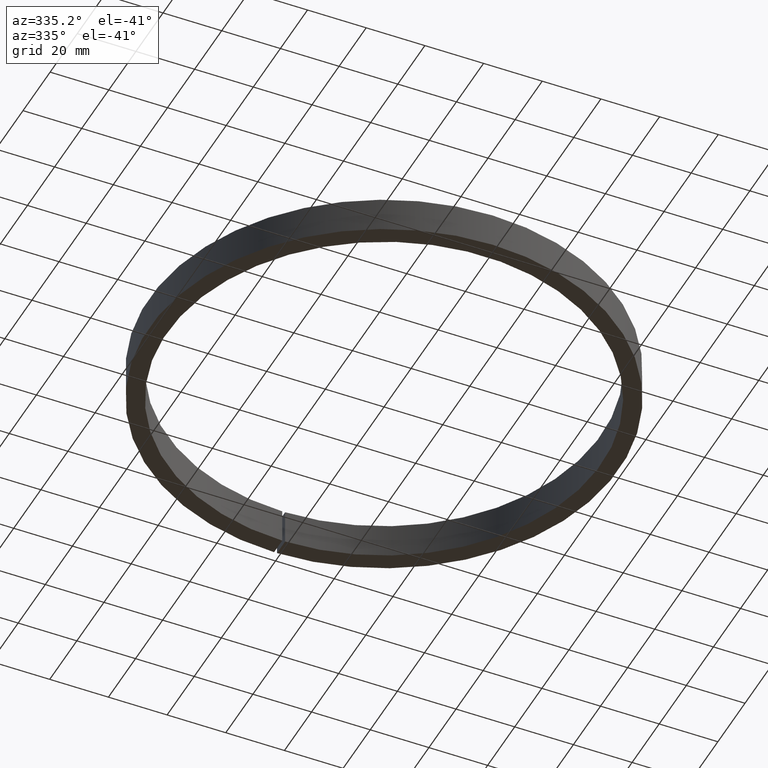
[diagram: clean part render]
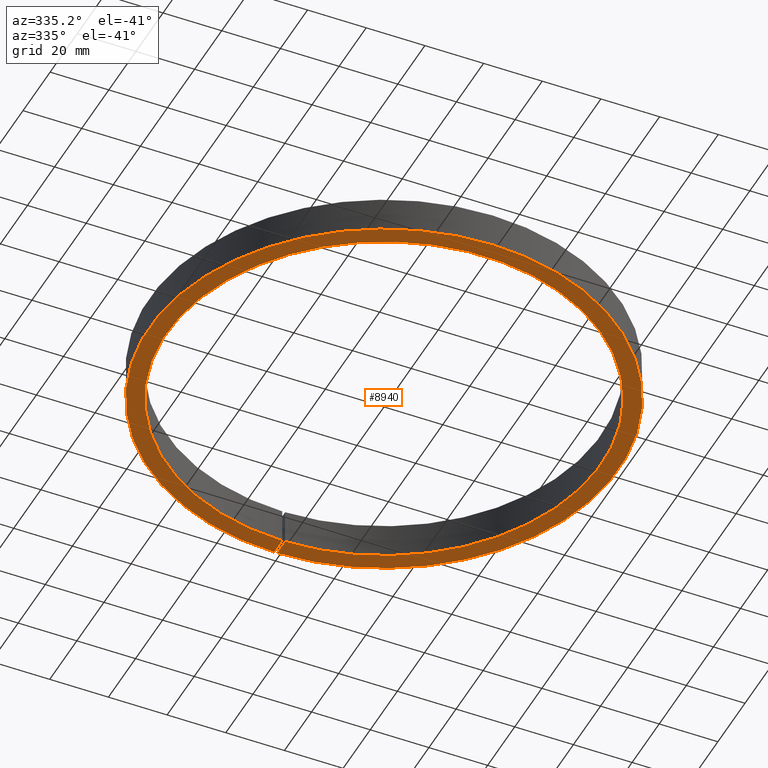
[diagram: same view with one face highlighted and labeled with its STEP entity id]
A machine part, auxiliary view. The second image highlights one B-rep face of the part: STEP entity #8940.
In plain terms, the highlighted planar face has unit normal (0, 0, 1).
Its self-contained STEP definition (entity closure, byte-faithful):
#47 = DIRECTION ( 'NONE',  ( -1.000000000000000000, 0.0000000000000000000, 0.0000000000000000000 ) ) ;
#771 = LINE ( 'NONE', #9660, #9611 ) ;
#1250 = EDGE_CURVE ( 'NONE', #3040, #6516, #771, .T. ) ;
#1581 = DIRECTION ( 'NONE',  ( -1.000000000000000000, 0.0000000000000000000, 0.0000000000000000000 ) ) ;
#1846 = ORIENTED_EDGE ( 'NONE', *, *, #1250, .F. ) ;
#2016 = EDGE_CURVE ( 'NONE', #4889, #3040, #3288, .T. ) ;
#2288 = VECTOR ( 'NONE', #10320, 1000.000000000000000 ) ;
#2330 = AXIS2_PLACEMENT_3D ( 'NONE', #4516, #8058, #47 ) ;
#3005 = AXIS2_PLACEMENT_3D ( 'NONE', #11331, #8877, #5046 ) ;
#3040 = VERTEX_POINT ( 'NONE', #3973 ) ;
#3128 = CARTESIAN_POINT ( 'NONE',  ( 0.5000000000000000000, 0.0000000000000000000, -6.000000000000001800 ) ) ;
#3288 = CIRCLE ( 'NONE', #11334, 74.00000000000001400 ) ;
#3843 = LINE ( 'NONE', #3128, #2288 ) ;
#3973 = CARTESIAN_POINT ( 'NONE',  ( -0.5000000000000000000, 73.99831079153092600, -6.000000000000001800 ) ) ;
#4240 = ORIENTED_EDGE ( 'NONE', *, *, #4540, .T. ) ;
#4344 = FACE_OUTER_BOUND ( 'NONE', #5308, .T. ) ;
#4516 = CARTESIAN_POINT ( 'NONE',  ( 0.0000000000000000000, 0.0000000000000000000, -6.000000000000001800 ) ) ;
#4540 = EDGE_CURVE ( 'NONE', #4889, #4972, #3843, .T. ) ;
#4889 = VERTEX_POINT ( 'NONE', #5804 ) ;
#4972 = VERTEX_POINT ( 'NONE', #10557 ) ;
#5046 = DIRECTION ( 'NONE',  ( 1.000000000000000000, 0.0000000000000000000, -0.0000000000000000000 ) ) ;
#5308 = EDGE_LOOP ( 'NONE', ( #10881, #4240, #9979, #1846 ) ) ;
#5804 = CARTESIAN_POINT ( 'NONE',  ( 0.5000000000000000000, 73.99831079153092600, -6.000000000000001800 ) ) ;
#6257 = CARTESIAN_POINT ( 'NONE',  ( 0.0000000000000000000, 0.0000000000000000000, -6.000000000000000900 ) ) ;
#6516 = VERTEX_POINT ( 'NONE', #7600 ) ;
#6617 = CIRCLE ( 'NONE', #2330, 80.00000000000000000 ) ;
#6668 = EDGE_CURVE ( 'NONE', #4972, #6516, #6617, .T. ) ;
#7600 = CARTESIAN_POINT ( 'NONE',  ( -0.5000000000000000000, 79.99843748474091900, -6.000000000000001800 ) ) ;
#7705 = PLANE ( 'NONE',  #3005 ) ;
#8058 = DIRECTION ( 'NONE',  ( -0.0000000000000000000, -0.0000000000000000000, -1.000000000000000000 ) ) ;
#8877 = DIRECTION ( 'NONE',  ( 0.0000000000000000000, 0.0000000000000000000, 1.000000000000000000 ) ) ;
#8940 = ADVANCED_FACE ( 'NONE', ( #4344 ), #7705, .F. ) ;
#9611 = VECTOR ( 'NONE', #10532, 1000.000000000000000 ) ;
#9660 = CARTESIAN_POINT ( 'NONE',  ( -0.5000000000000000000, 0.0000000000000000000, -6.000000000000001800 ) ) ;
#9818 = DIRECTION ( 'NONE',  ( -0.0000000000000000000, -0.0000000000000000000, -1.000000000000000000 ) ) ;
#9979 = ORIENTED_EDGE ( 'NONE', *, *, #6668, .T. ) ;
#10320 = DIRECTION ( 'NONE',  ( 0.0000000000000000000, 1.000000000000000000, -0.0000000000000000000 ) ) ;
#10532 = DIRECTION ( 'NONE',  ( 0.0000000000000000000, 1.000000000000000000, -0.0000000000000000000 ) ) ;
#10557 = CARTESIAN_POINT ( 'NONE',  ( 0.5000000000000000000, 79.99843748474091900, -6.000000000000001800 ) ) ;
#10881 = ORIENTED_EDGE ( 'NONE', *, *, #2016, .F. ) ;
#11331 = CARTESIAN_POINT ( 'NONE',  ( 0.0000000000000000000, -74.00000000000001400, -6.000000000000001800 ) ) ;
#11334 = AXIS2_PLACEMENT_3D ( 'NONE', #6257, #9818, #1581 ) ;